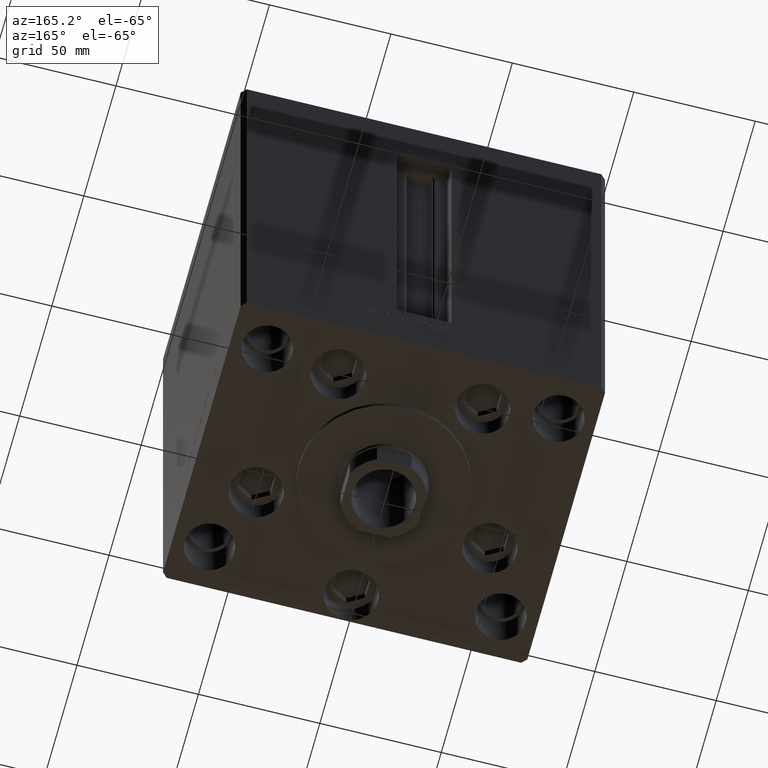
[diagram: clean part render]
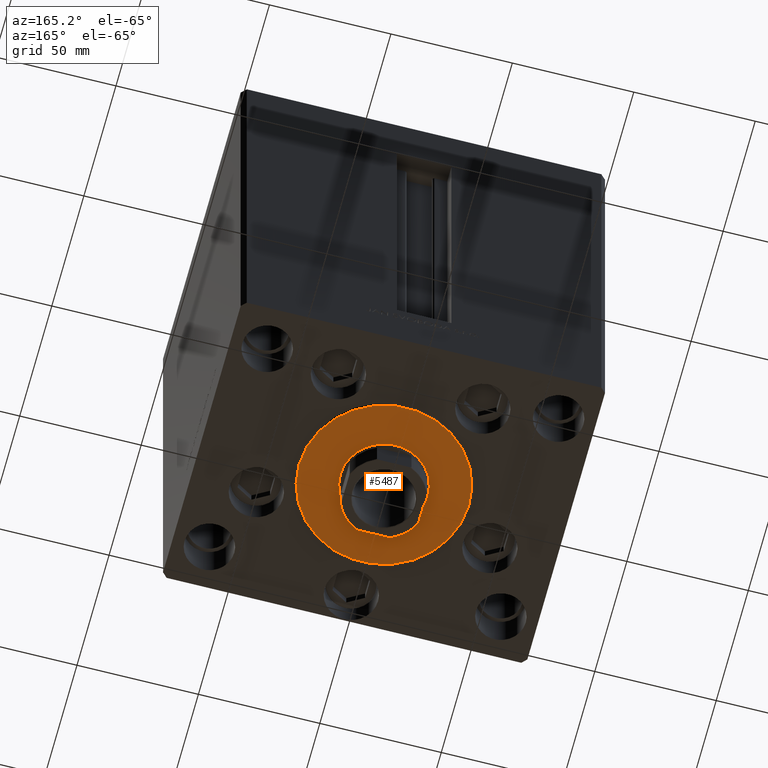
[diagram: same view with one face highlighted and labeled with its STEP entity id]
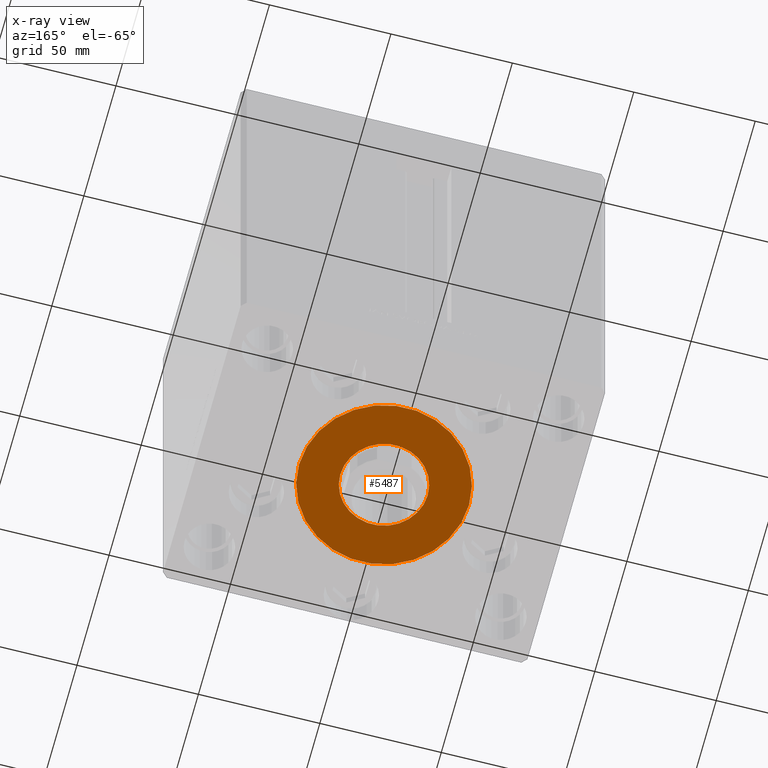
[diagram: x-ray of the same camera — body ghosted, the highlighted face saturated]
A machine part, auxiliary view. The second image highlights one B-rep face of the part: STEP entity #5487.
The next image is the same camera in x-ray: the body ghosted, the highlighted face saturated — about 0% of this face is hidden behind the body in this view.
In plain terms, the highlighted planar face has unit normal (0, 0, -1).
Its self-contained STEP definition (entity closure, byte-faithful):
#3188 = CIRCLE ( 'NONE', #8685, 18.00000000000000000 ) ;
#4143 = DIRECTION ( 'NONE',  ( 0.000000000000000000, 0.000000000000000000, 1.000000000000000000 ) ) ;
#4385 = FACE_OUTER_BOUND ( 'NONE', #41335, .T. ) ;
#5395 = CARTESIAN_POINT ( 'NONE',  ( 18.00000000000000000, -6.938893903907228378E-15, 2.000000000000000000 ) ) ;
#5487 = ADVANCED_FACE ( 'NONE', ( #38277, #4385 ), #37555, .T. ) ;
#6258 = DIRECTION ( 'NONE',  ( 1.000000000000000000, 0.000000000000000000, 0.000000000000000000 ) ) ;
#6489 = ORIENTED_EDGE ( 'NONE', *, *, #14607, .F. ) ;
#8685 = AXIS2_PLACEMENT_3D ( 'NONE', #38949, #11997, #42148 ) ;
#8742 = DIRECTION ( 'NONE',  ( 0.000000000000000000, 0.000000000000000000, 1.000000000000000000 ) ) ;
#9968 = CARTESIAN_POINT ( 'NONE',  ( -18.00000000000000000, -4.734529665441992555E-15, 2.000000000000000000 ) ) ;
#11997 = DIRECTION ( 'NONE',  ( 0.000000000000000000, 0.000000000000000000, 1.000000000000000000 ) ) ;
#12480 = VERTEX_POINT ( 'NONE', #5395 ) ;
#13580 = CIRCLE ( 'NONE', #34907, 35.00000000000000711 ) ;
#14607 = EDGE_CURVE ( 'NONE', #25856, #12480, #3188, .T. ) ;
#15475 = AXIS2_PLACEMENT_3D ( 'NONE', #30855, #4143, #45944 ) ;
#16985 = AXIS2_PLACEMENT_3D ( 'NONE', #36455, #44340, #6258 ) ;
#17677 = CARTESIAN_POINT ( 'NONE',  ( 0.000000000000000000, -6.938893903907228378E-15, 2.000000000000000000 ) ) ;
#20349 = DIRECTION ( 'NONE',  ( 1.000000000000000000, 0.000000000000000000, 0.000000000000000000 ) ) ;
#20973 = CARTESIAN_POINT ( 'NONE',  ( -35.00000000000000711, -6.938893903907228378E-15, 2.000000000000000000 ) ) ;
#21773 = EDGE_CURVE ( 'NONE', #37695, #34283, #37227, .T. ) ;
#24806 = EDGE_CURVE ( 'NONE', #34283, #37695, #13580, .T. ) ;
#25856 = VERTEX_POINT ( 'NONE', #9968 ) ;
#26002 = ORIENTED_EDGE ( 'NONE', *, *, #21773, .T. ) ;
#30855 = CARTESIAN_POINT ( 'NONE',  ( 0.000000000000000000, -6.938893903907228378E-15, 2.000000000000000000 ) ) ;
#33339 = CARTESIAN_POINT ( 'NONE',  ( 35.00000000000000711, -2.652630106891490698E-15, 2.000000000000000000 ) ) ;
#34283 = VERTEX_POINT ( 'NONE', #33339 ) ;
#34403 = ORIENTED_EDGE ( 'NONE', *, *, #24806, .T. ) ;
#34907 = AXIS2_PLACEMENT_3D ( 'NONE', #17677, #37205, #37449 ) ;
#36455 = CARTESIAN_POINT ( 'NONE',  ( 0.000000000000000000, -6.938893903907228378E-15, 2.000000000000000000 ) ) ;
#37205 = DIRECTION ( 'NONE',  ( 0.000000000000000000, 0.000000000000000000, 1.000000000000000000 ) ) ;
#37227 = CIRCLE ( 'NONE', #46720, 35.00000000000000711 ) ;
#37449 = DIRECTION ( 'NONE',  ( 1.000000000000000000, 0.000000000000000000, 0.000000000000000000 ) ) ;
#37553 = EDGE_CURVE ( 'NONE', #12480, #25856, #39095, .T. ) ;
#37555 = PLANE ( 'NONE',  #15475 ) ;
#37695 = VERTEX_POINT ( 'NONE', #20973 ) ;
#38113 = ORIENTED_EDGE ( 'NONE', *, *, #37553, .F. ) ;
#38277 = FACE_BOUND ( 'NONE', #41323, .T. ) ;
#38949 = CARTESIAN_POINT ( 'NONE',  ( 0.000000000000000000, -6.938893903907228378E-15, 2.000000000000000000 ) ) ;
#39095 = CIRCLE ( 'NONE', #16985, 18.00000000000000000 ) ;
#41323 = EDGE_LOOP ( 'NONE', ( #38113, #6489 ) ) ;
#41335 = EDGE_LOOP ( 'NONE', ( #26002, #34403 ) ) ;
#42148 = DIRECTION ( 'NONE',  ( 1.000000000000000000, 0.000000000000000000, 0.000000000000000000 ) ) ;
#42368 = CARTESIAN_POINT ( 'NONE',  ( 0.000000000000000000, -6.938893903907228378E-15, 2.000000000000000000 ) ) ;
#44340 = DIRECTION ( 'NONE',  ( 0.000000000000000000, 0.000000000000000000, 1.000000000000000000 ) ) ;
#45944 = DIRECTION ( 'NONE',  ( 1.000000000000000000, 0.000000000000000000, -0.000000000000000000 ) ) ;
#46720 = AXIS2_PLACEMENT_3D ( 'NONE', #42368, #8742, #20349 ) ;